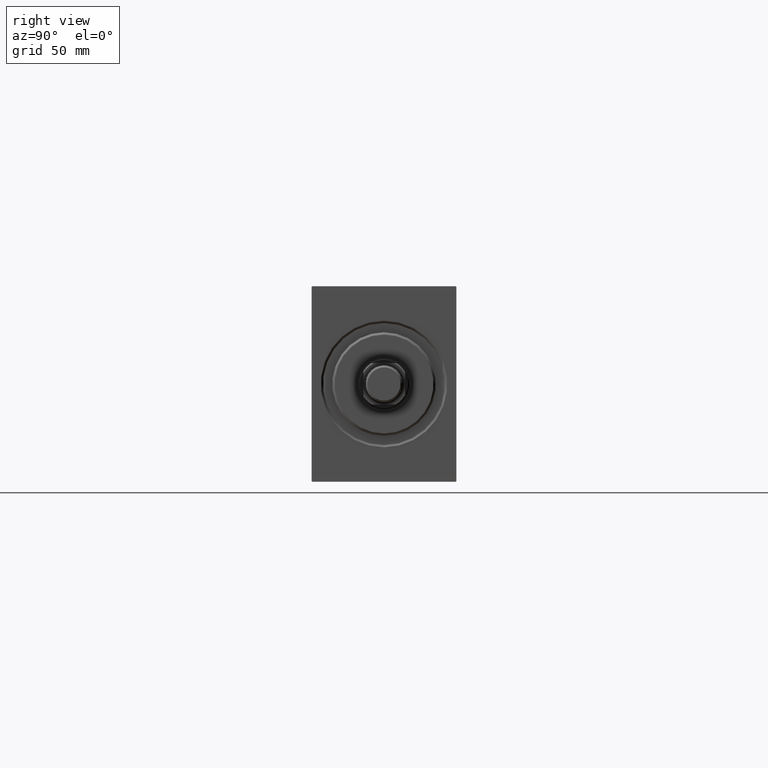
[diagram: clean part render]
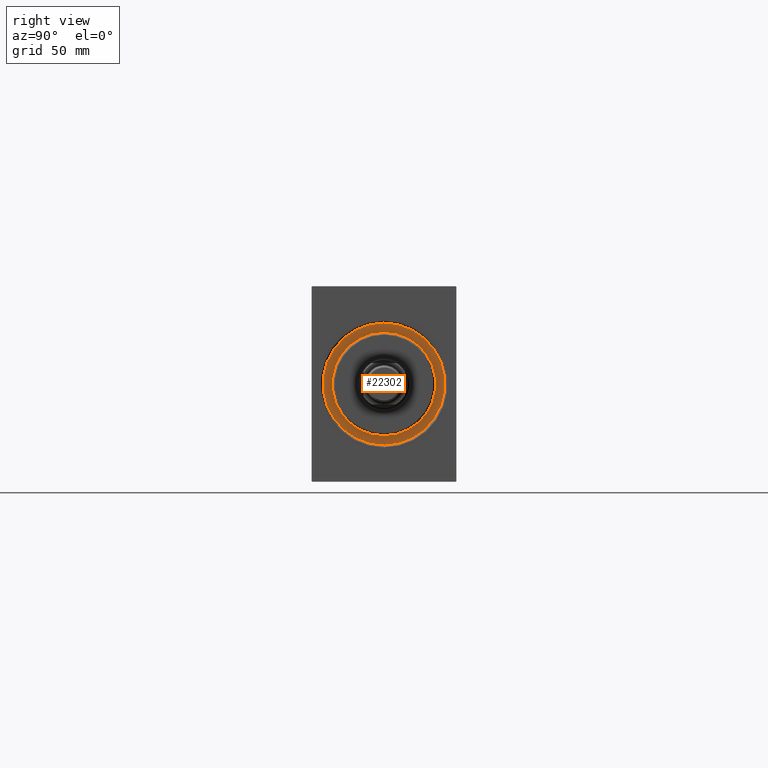
[diagram: same view with one face highlighted and labeled with its STEP entity id]
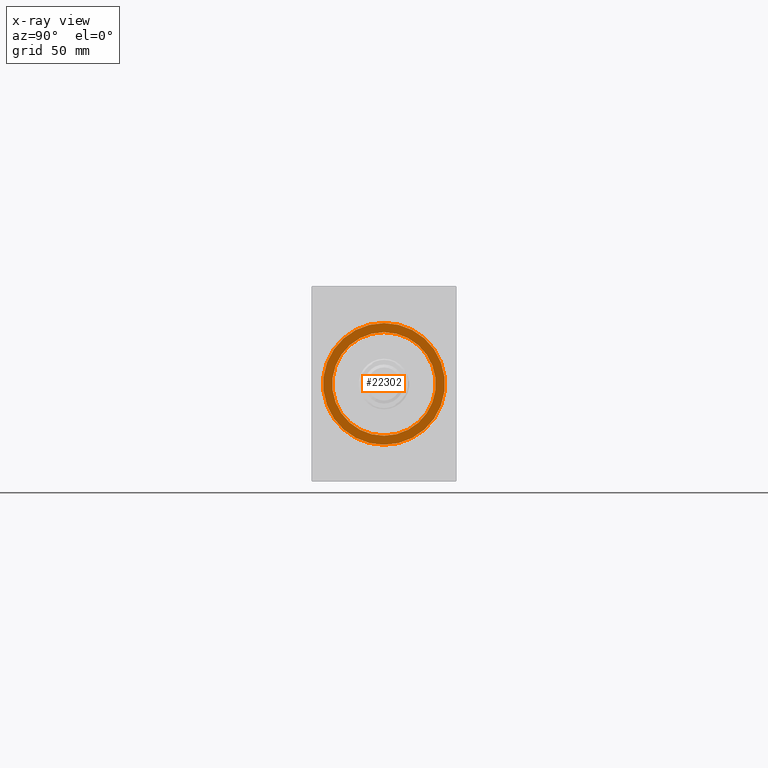
[diagram: x-ray of the same camera — body ghosted, the highlighted face saturated]
A machine part, right view. The second image highlights one B-rep face of the part: STEP entity #22302.
The next image is the same camera in x-ray: the body ghosted, the highlighted face saturated — about 0% of this face is hidden behind the body in this view.
In plain terms, the highlighted planar face has unit normal (1, 0, 0).
Its self-contained STEP definition (entity closure, byte-faithful):
#979 = DIRECTION ( 'NONE',  ( 0.000000000000000000, 0.000000000000000000, -1.000000000000000000 ) ) ;
#1434 = DIRECTION ( 'NONE',  ( 1.000000000000000000, -0.000000000000000000, 0.000000000000000000 ) ) ;
#2281 = DIRECTION ( 'NONE',  ( 0.000000000000000000, 0.000000000000000000, -1.000000000000000000 ) ) ;
#2340 = DIRECTION ( 'NONE',  ( 0.000000000000000000, 0.000000000000000000, -1.000000000000000000 ) ) ;
#3350 = AXIS2_PLACEMENT_3D ( 'NONE', #7834, #14251, #979 ) ;
#4538 = ORIENTED_EDGE ( 'NONE', *, *, #8153, .T. ) ;
#5169 = CARTESIAN_POINT ( 'NONE',  ( 0.000000000000000000, 0.000000000000000000, -26.50000000000000355 ) ) ;
#5322 = EDGE_LOOP ( 'NONE', ( #12307, #4538 ) ) ;
#5410 = CIRCLE ( 'NONE', #8305, 26.50000000000000355 ) ;
#5415 = CARTESIAN_POINT ( 'NONE',  ( 0.000000000000000000, 0.000000000000000000, 0.000000000000000000 ) ) ;
#7834 = CARTESIAN_POINT ( 'NONE',  ( 0.000000000000000000, 0.000000000000000000, 0.000000000000000000 ) ) ;
#8153 = EDGE_CURVE ( 'NONE', #24614, #40343, #5410, .T. ) ;
#8305 = AXIS2_PLACEMENT_3D ( 'NONE', #32994, #26374, #2281 ) ;
#8988 = CARTESIAN_POINT ( 'NONE',  ( 0.000000000000000000, 0.000000000000000000, 0.000000000000000000 ) ) ;
#8997 = CIRCLE ( 'NONE', #3350, 22.50000000000000355 ) ;
#9202 = CARTESIAN_POINT ( 'NONE',  ( 0.000000000000000000, 3.245314017740486554E-15, 26.50000000000000355 ) ) ;
#10665 = CARTESIAN_POINT ( 'NONE',  ( 0.000000000000000000, 0.000000000000000000, 22.50000000000000355 ) ) ;
#12269 = DIRECTION ( 'NONE',  ( 0.000000000000000000, 0.000000000000000000, -1.000000000000000000 ) ) ;
#12307 = ORIENTED_EDGE ( 'NONE', *, *, #24526, .T. ) ;
#14251 = DIRECTION ( 'NONE',  ( 1.000000000000000000, -0.000000000000000000, 0.000000000000000000 ) ) ;
#15173 = FACE_BOUND ( 'NONE', #30597, .T. ) ;
#15393 = CARTESIAN_POINT ( 'NONE',  ( 0.000000000000000000, 0.000000000000000000, 0.000000000000000000 ) ) ;
#19584 = ORIENTED_EDGE ( 'NONE', *, *, #33580, .F. ) ;
#19848 = VERTEX_POINT ( 'NONE', #35622 ) ;
#22137 = AXIS2_PLACEMENT_3D ( 'NONE', #8988, #22465, #35919 ) ;
#22302 = ADVANCED_FACE ( 'NONE', ( #15173, #35921 ), #32615, .T. ) ;
#22465 = DIRECTION ( 'NONE',  ( 1.000000000000000000, 0.000000000000000000, 0.000000000000000000 ) ) ;
#24526 = EDGE_CURVE ( 'NONE', #40343, #24614, #40473, .T. ) ;
#24614 = VERTEX_POINT ( 'NONE', #9202 ) ;
#26374 = DIRECTION ( 'NONE',  ( 1.000000000000000000, 0.000000000000000000, 0.000000000000000000 ) ) ;
#28650 = DIRECTION ( 'NONE',  ( 1.000000000000000000, 0.000000000000000000, 0.000000000000000000 ) ) ;
#30597 = EDGE_LOOP ( 'NONE', ( #40402, #19584 ) ) ;
#31031 = AXIS2_PLACEMENT_3D ( 'NONE', #5415, #1434, #12269 ) ;
#32615 = PLANE ( 'NONE',  #39022 ) ;
#32994 = CARTESIAN_POINT ( 'NONE',  ( 0.000000000000000000, 0.000000000000000000, 0.000000000000000000 ) ) ;
#33580 = EDGE_CURVE ( 'NONE', #19848, #35309, #8997, .T. ) ;
#35309 = VERTEX_POINT ( 'NONE', #10665 ) ;
#35622 = CARTESIAN_POINT ( 'NONE',  ( 0.000000000000000000, 2.755455298081545172E-15, -22.50000000000000355 ) ) ;
#35919 = DIRECTION ( 'NONE',  ( 0.000000000000000000, 0.000000000000000000, -1.000000000000000000 ) ) ;
#35921 = FACE_OUTER_BOUND ( 'NONE', #5322, .T. ) ;
#39022 = AXIS2_PLACEMENT_3D ( 'NONE', #15393, #28650, #2340 ) ;
#40343 = VERTEX_POINT ( 'NONE', #5169 ) ;
#40402 = ORIENTED_EDGE ( 'NONE', *, *, #42015, .F. ) ;
#40473 = CIRCLE ( 'NONE', #22137, 26.50000000000000355 ) ;
#40906 = CIRCLE ( 'NONE', #31031, 22.50000000000000355 ) ;
#42015 = EDGE_CURVE ( 'NONE', #35309, #19848, #40906, .T. ) ;